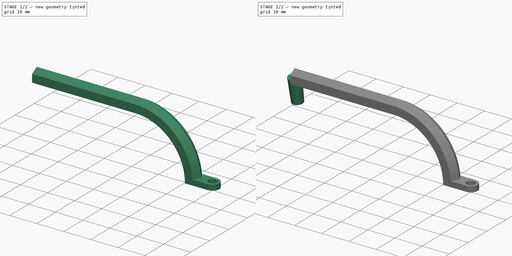
[diagram: build sequence overview — one tinted view per stage of 2, left to right]
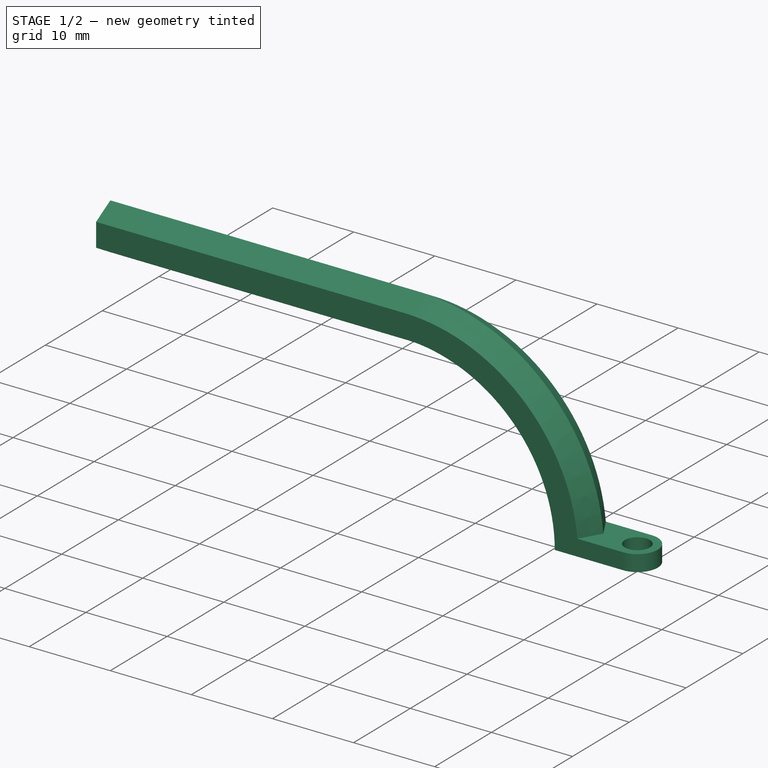
[diagram: stage 1 of 2 — iso view after this stage's code; geometry added in this stage tinted green]
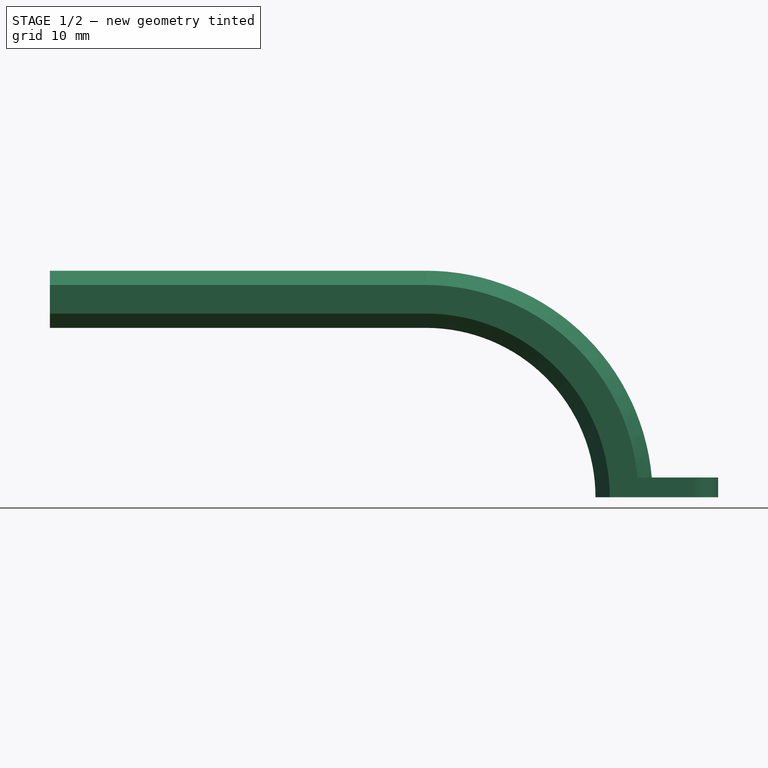
[diagram: stage 1 of 2 — front view after this stage's code; geometry added in this stage tinted green]
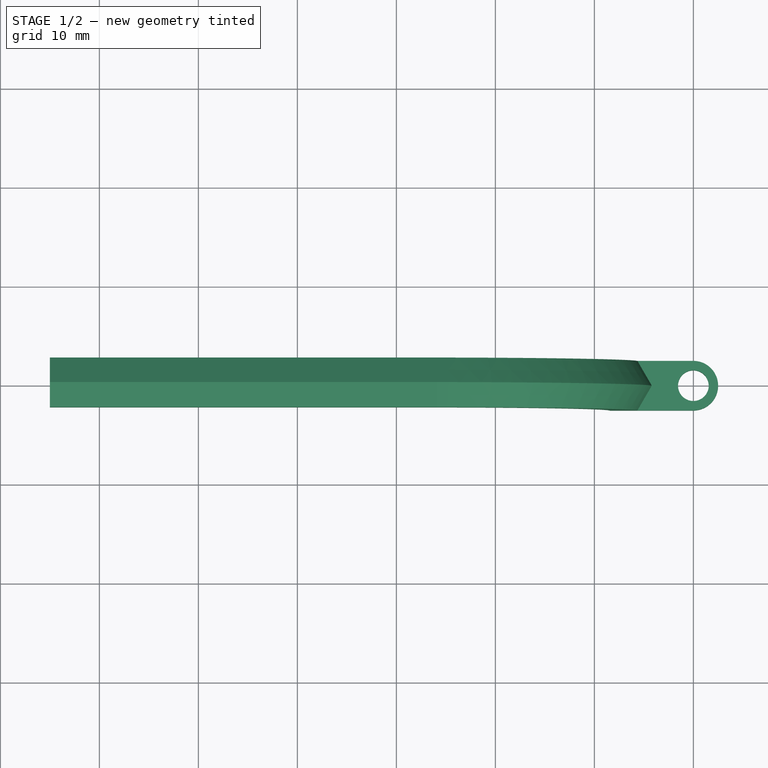
[diagram: stage 1 of 2 — top view after this stage's code; geometry added in this stage tinted green]
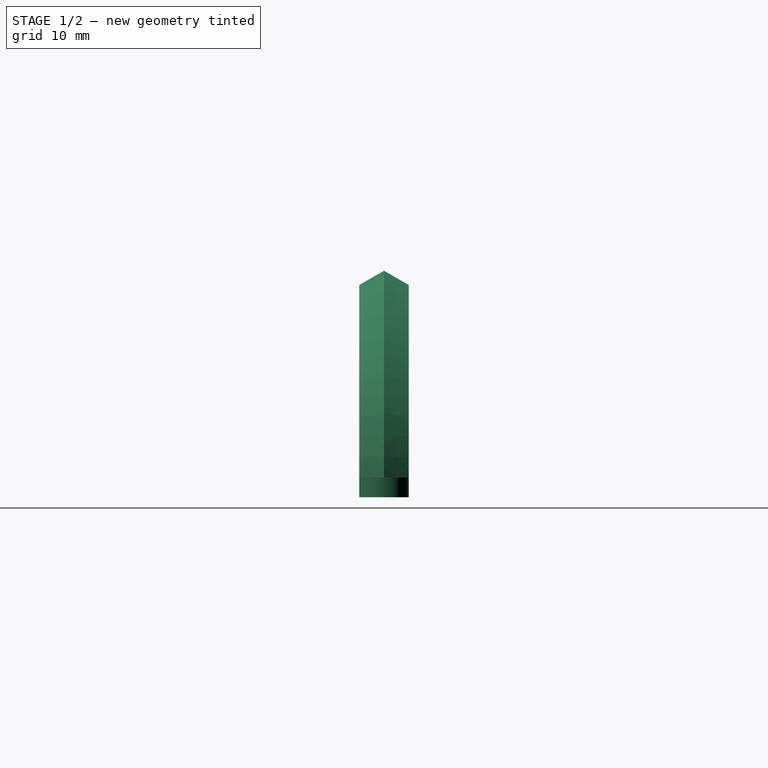
[diagram: stage 1 of 2 — right view after this stage's code; geometry added in this stage tinted green]
FCSTD DOCUMENT  (FreeCAD 0.19R24344 (Git))
Label: MicroManipulator_Arm_tilted_Arena
Comment: Arm for the MicroManipulator. The friction mount point for the Luer lock item tilted so that the animal is not exactly on top of the treadmill but instead is always in a 10° upward angle.
License: Creative Commons Attribution-NonCommercial-ShareAlike
LicenseURL: http://creativecommons.org/licenses/by-nc-sa/4.0/
objects: Sketcher::SketchObject×4, PartDesign::CoordinateSystem×2, PartDesign::Pad×1, PartDesign::AdditivePipe×1, PartDesign::Plane×1, PartDesign::Revolution×1, PartDesign::Body×1
note: 14 computed .brp shape members not serialized (recipe doc carries the construction recipe); baked Part::Feature solids carry a one-line shape summary decoded from their .brp

FEATURE [Sketcher::SketchObject] Sketch
  FullyConstrained = true
  MapMode = 5
  Support = -> [XY_Plane]
  sketch-geometry (5):
    g0: Circle CenterX=0 CenterY=0 CenterZ=0 NormalX=0 NormalY=0 NormalZ=1 AngleXU=0 Radius=1.55
    g1: LineSegment StartX=1.23043e-11 StartY=2.5 StartZ=0 EndX=-7 EndY=2.5 EndZ=0
    g2: LineSegment StartX=-7 StartY=2.5 StartZ=0 EndX=-7 EndY=-2.5 EndZ=0
    g3: LineSegment StartX=1.23043e-11 StartY=-2.5 StartZ=0 EndX=-7 EndY=-2.5 EndZ=0
    g4: ArcOfCircle CenterX=0 CenterY=0 CenterZ=0 NormalX=0 NormalY=0 NormalZ=1 AngleXU=0 Radius=2.5 StartAngle=4.71239 EndAngle=7.85398
  constraints (14):
    c: Diameter(g0) = 3.1
    c: Horizontal(g1)
    c: Coincident(g2,g1)
    c: Vertical(g2)
    c: Coincident(g3,g2)
    c: Horizontal(g3)
    c: Coincident(g4,g1)
    c: Coincident(g4,g3)
    c: Angle(g4) = 3.14159
    c: Distance(g3,g1) = 5
    c: Vertical(g3,g1)
    c: Coincident(g4,g0)
    c: Coincident(g0,g-1)
    c: Distance(g3) = 7
FEATURE [PartDesign::Pad] Pad
  Direction = (1,1,1)
  Length = 2
  Length2 = 100
  Profile = -> Sketch
  Type = 0
FEATURE [Sketcher::SketchObject] Sketch001
  ExternalGeometry = -> [Pad]
  FullyConstrained = true
  MapMode = 5
  Placement = pos=(0,0,0) rot=(1,0,0;1.5708rad)
  Support = -> [XZ_Plane]
  sketch-geometry (2):
    g0: ArcOfCircle CenterX=-27 CenterY=2.8025e-12 CenterZ=0 NormalX=0 NormalY=0 NormalZ=1 AngleXU=0 Radius=20 StartAngle=-1.33e-14 EndAngle=1.5708
    g1: LineSegment StartX=-27 StartY=20 StartZ=0 EndX=-65 EndY=20 EndZ=0
  constraints (6):
    c: Coincident(g0,g-3)
    c: Horizontal(g1)
    c: DistanceX(g1,g-1) = 65
    c: DistanceY(g-1,g1) = 20
    c: Tangent(g1,g0) = -1.5708
    c: Angle(g0) = 1.5708
FEATURE [Sketcher::SketchObject] Sketch002
  ExternalGeometry = -> [Sketch001]
  FullyConstrained = true
  MapMode = 5
  Support = -> [XY_Plane]
  sketch-geometry (7):
    g0: LineSegment StartX=-8.44338 StartY=-2.5 StartZ=0 EndX=-5.55662 EndY=-2.5 EndZ=0
    g1: LineSegment StartX=-5.55662 StartY=-2.5 StartZ=0 EndX=-4.11325 EndY=-1.24e-14 EndZ=0
    g2: LineSegment StartX=-4.11325 StartY=-1.24e-14 StartZ=0 EndX=-5.55662 EndY=2.5 EndZ=0
    g3: LineSegment StartX=-5.55662 StartY=2.5 StartZ=0 EndX=-8.44338 EndY=2.5 EndZ=0
    g4: LineSegment StartX=-8.44338 StartY=2.5 StartZ=0 EndX=-9.88675 EndY=-1.3e-15 EndZ=0
    g5: LineSegment StartX=-9.88675 StartY=-1.3e-15 StartZ=0 EndX=-8.44338 EndY=-2.5 EndZ=0
    g6: Circle CenterX=-7 CenterY=0 CenterZ=0 NormalX=0 NormalY=0 NormalZ=1 AngleXU=0 Radius=2.88675
  constraints (16):
    c: Coincident(g0,g1)
    c: Coincident(g1,g2)
    c: Coincident(g2,g3)
    c: Coincident(g3,g4)
    c: Coincident(g4,g5)
    c: Coincident(g5,g0)
    c: Equal(g0, g1-g5) x5
    c: PointOnObject(g0,g6)
    c: PointOnObject(g1,g6)
    c: PointOnObject(g2,g6)
    c: PointOnObject(g3,g6)
    c: PointOnObject(g4,g6)
    c: PointOnObject(g5,g6)
    c: Coincident(g6,g-3)
    c: DistanceY(g0,g3) = 5
    c: Horizontal(g0)
FEATURE [PartDesign::AdditivePipe] AdditivePipe
  AuxilleryCurvelinear = true
  AuxillerySpineTangent = false
  BaseFeature = -> Pad
  Binormal = (0,0,0)
  Mode = 0
  Profile = -> Sketch002
  Spine = -> Sketch001
  SpineTangent = false
  Transformation = 0
  Transition = 0
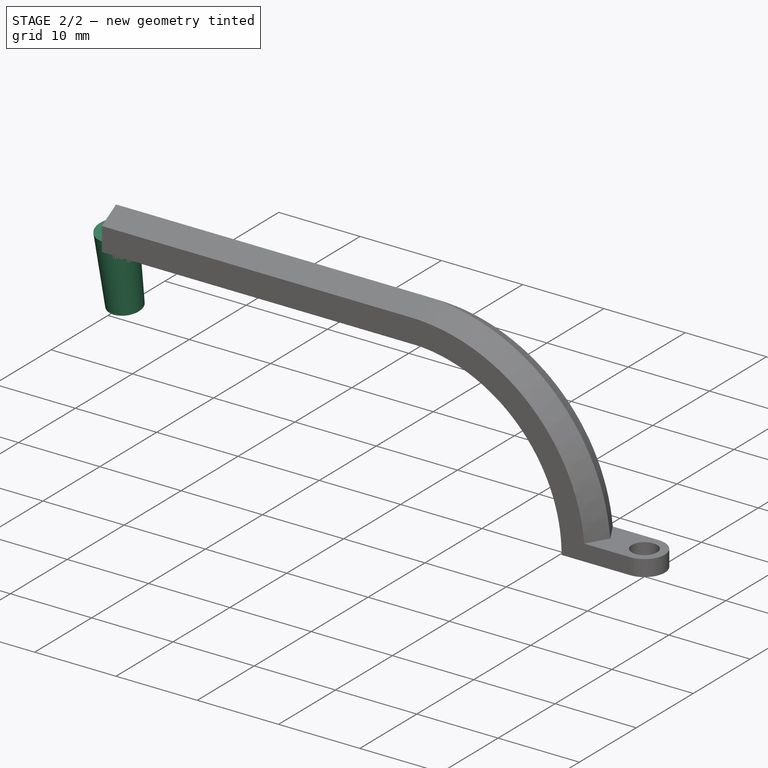
[diagram: stage 2 of 2 — iso view after this stage's code; geometry added in this stage tinted green]
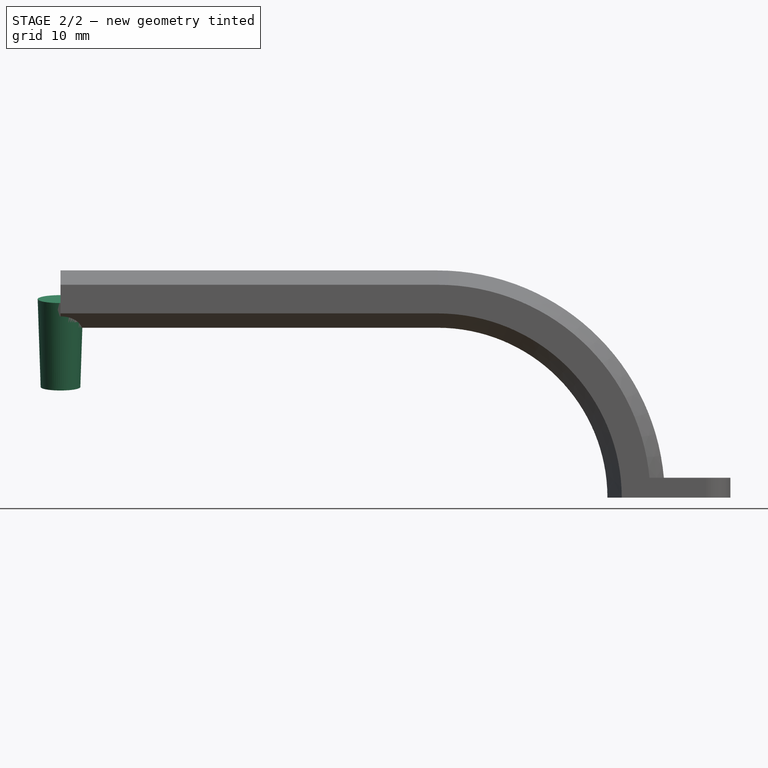
[diagram: stage 2 of 2 — front view after this stage's code; geometry added in this stage tinted green]
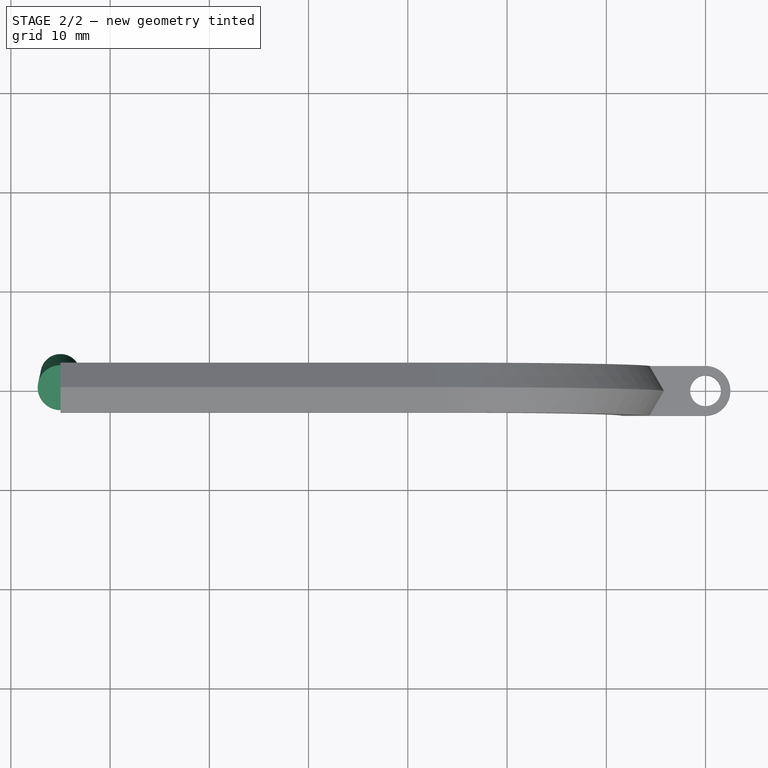
[diagram: stage 2 of 2 — top view after this stage's code; geometry added in this stage tinted green]
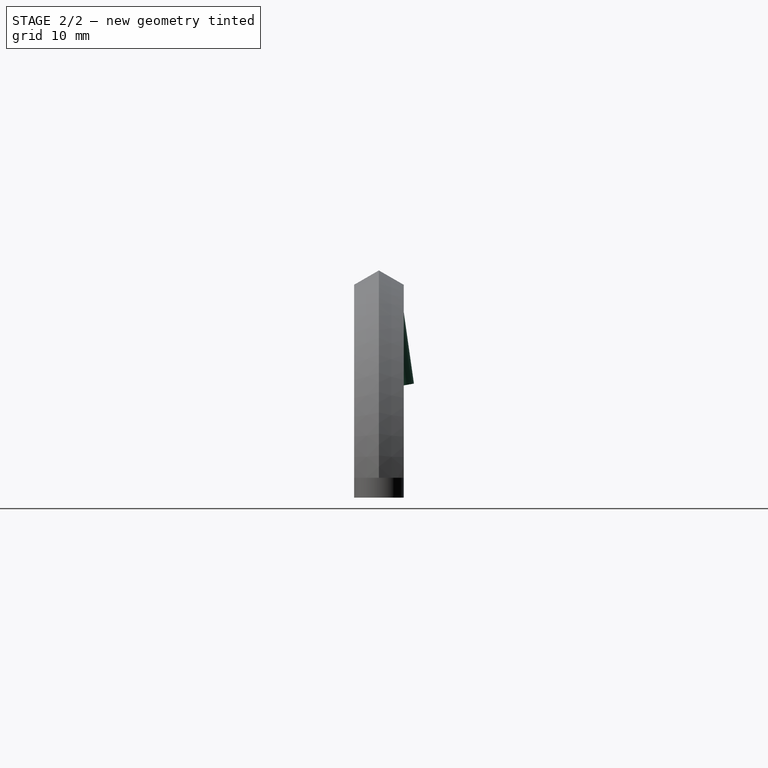
[diagram: stage 2 of 2 — right view after this stage's code; geometry added in this stage tinted green]
FEATURE [PartDesign::Plane] DatumPlane
  AttachmentOffset = pos=(0,20,0) rot=(0.086994,0.994345,-0.060914;1.92519rad)
  Length = 107.992
  MapMode = 5
  Placement = pos=(-65,2.2e-15,20) rot=(0.974517,0.144186,0.171834;1.77069rad)
  ResizeMode = 0
  Support = -> [AdditivePipe]
  Width = 72.6246
FEATURE [Sketcher::SketchObject] Sketch004
  FullyConstrained = true
  MapMode = 5
  Placement = pos=(-65,7.1e-15,20) rot=(0.974517,0.144186,0.171834;1.77069rad)
  Support = -> [DatumPlane]
  sketch-geometry (4):
    g0: LineSegment StartX=0 StartY=0 StartZ=0 EndX=-2.3 EndY=0 EndZ=0
    g1: LineSegment StartX=-2.3 StartY=0 StartZ=0 EndX=-2 EndY=-9 EndZ=0
    g2: LineSegment StartX=-2 StartY=-9 StartZ=0 EndX=0 EndY=-9 EndZ=0
    g3: LineSegment StartX=0 StartY=-9 StartZ=0 EndX=0 EndY=0 EndZ=0
  constraints (12):
    c: PointOnObject(g0,g-1)
    c: Horizontal(g0)
    c: Coincident(g1,g0)
    c: PointOnObject(g2,g-2)
    c: Vertical(g3)
    c: Distance(g2) = 2
    c: Distance(g0) = 2.3
    c: Coincident(g2,g1)
    c: Coincident(g3,g0)
    c: Coincident(g3,g2)
    c: Distance(g3) = 9
    c: Horizontal(g2)
FEATURE [PartDesign::Revolution] Revolution
  Angle = 360
  Axis = (-1.27e-14,-0.173648,0.984808)
  Base = (-65,3.6e-15,20)
  BaseFeature = -> AdditivePipe
  Profile = -> Sketch004
  ReferenceAxis = -> Sketch004 [V_Axis]
FEATURE [PartDesign::CoordinateSystem] LCS_Hinge
  AttacherType = Attacher::AttachEngine3D
  MapMode = 11
  Placement = pos=(0,0,0) rot=(0,0,1;1.5708rad)
  Support = -> [Revolution]
FEATURE [PartDesign::CoordinateSystem] LCS_Luer
  AttacherType = Attacher::AttachEngine3D
  MapMode = 45
  Placement = pos=(-65,1.56283,11.1367) rot=(1,0,0;0.174533rad)
  Support = -> [Revolution]
FEATURE [PartDesign::Body] Body  label="Arm_tilted_Arena"
  Group = -> [Sketch,Pad,Sketch001,Sketch002,AdditivePipe,DatumPlane,Sketch004,Revolution,LCS_Hinge,LCS_Luer]
  Origin = -> Origin
  Tip = -> Revolution
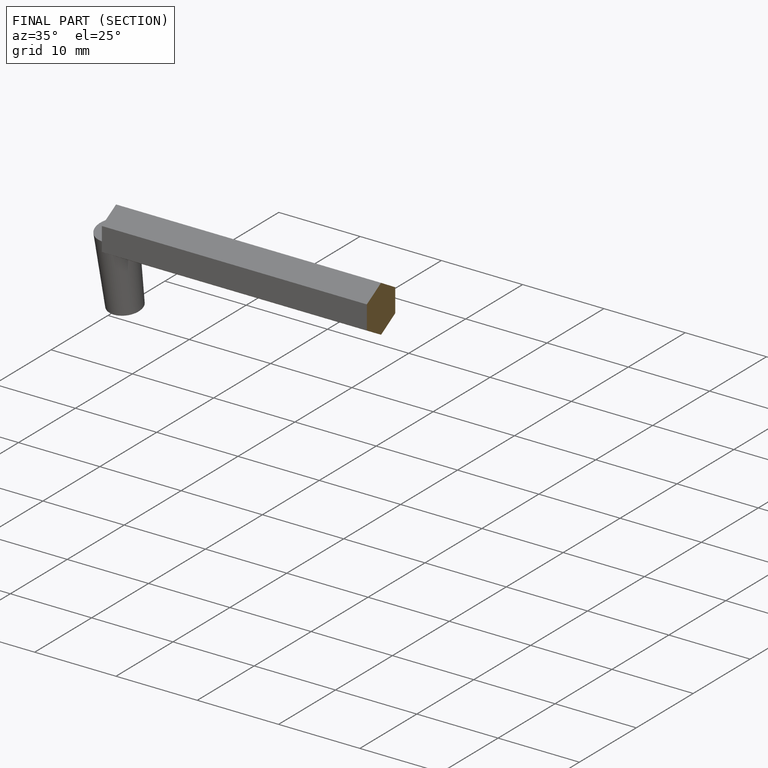
[diagram: finished part — half-section view (interior)]
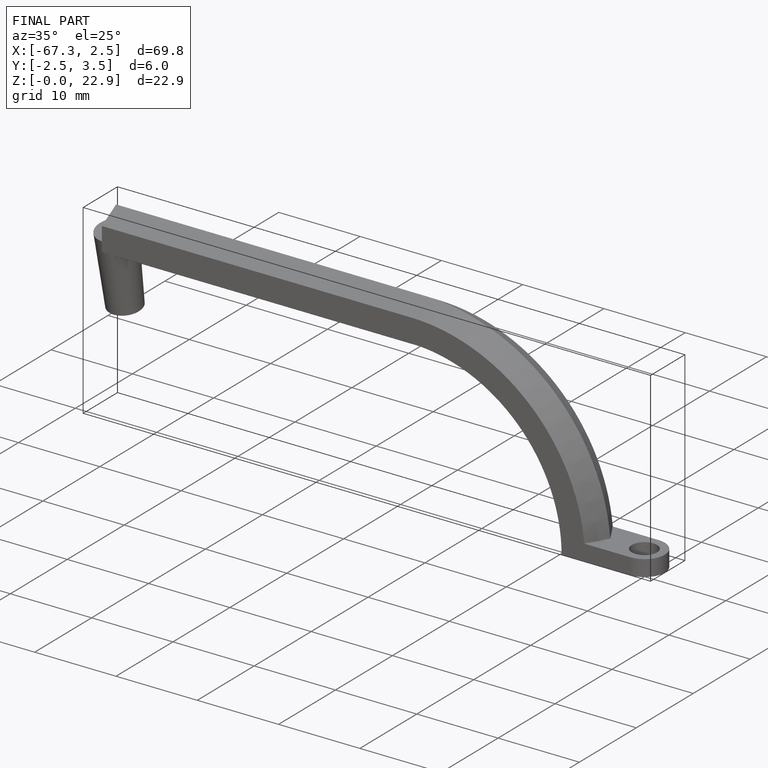
[diagram: finished part — iso view with bounding-box wireframe]
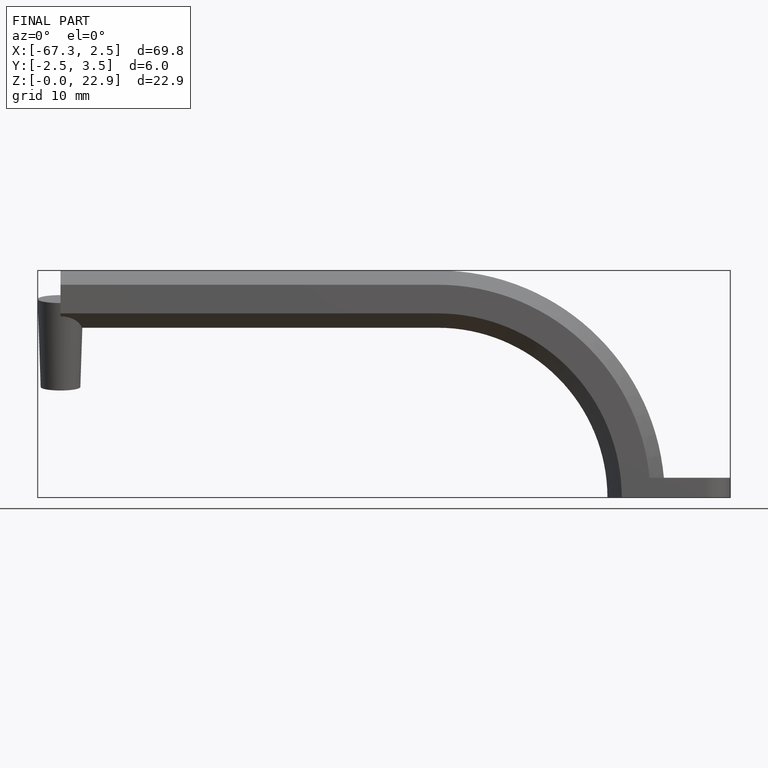
[diagram: finished part — front view with bounding-box wireframe]
